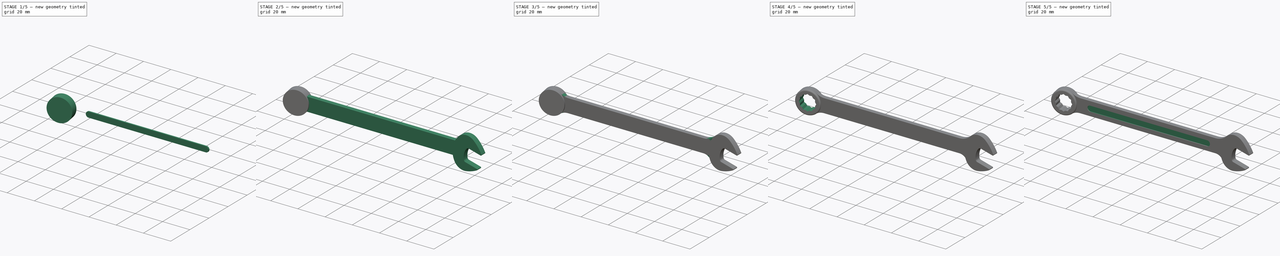
[diagram: build sequence overview — one tinted view per stage of 5, left to right]
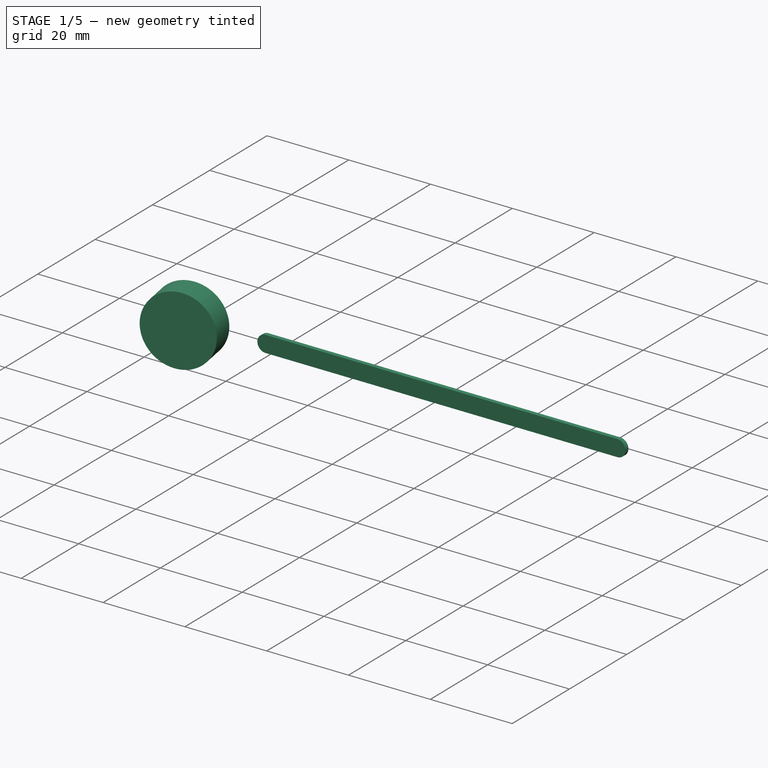
[diagram: stage 1 of 5 — iso view after this stage's code; geometry added in this stage tinted green]
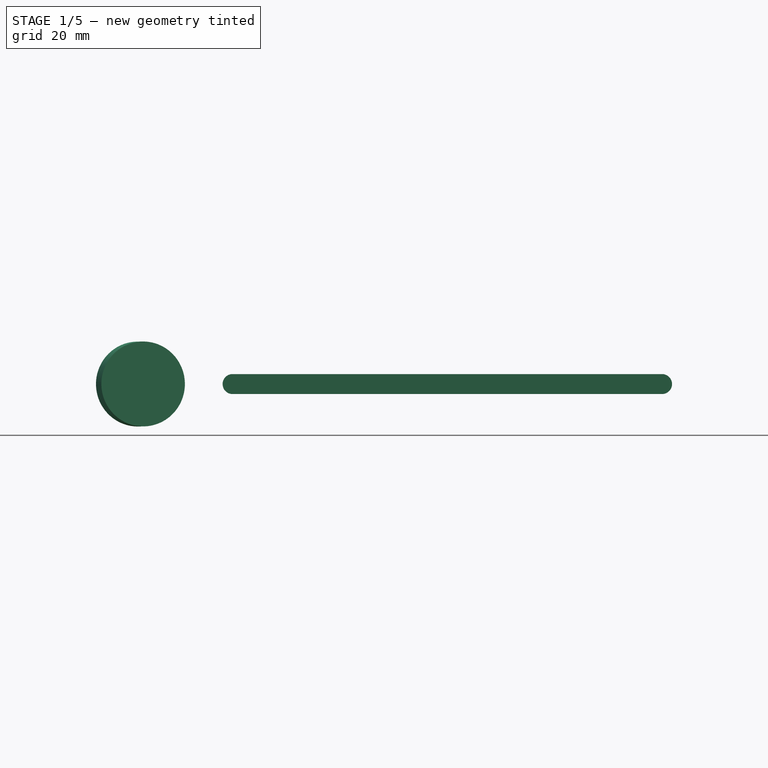
[diagram: stage 1 of 5 — front view after this stage's code; geometry added in this stage tinted green]
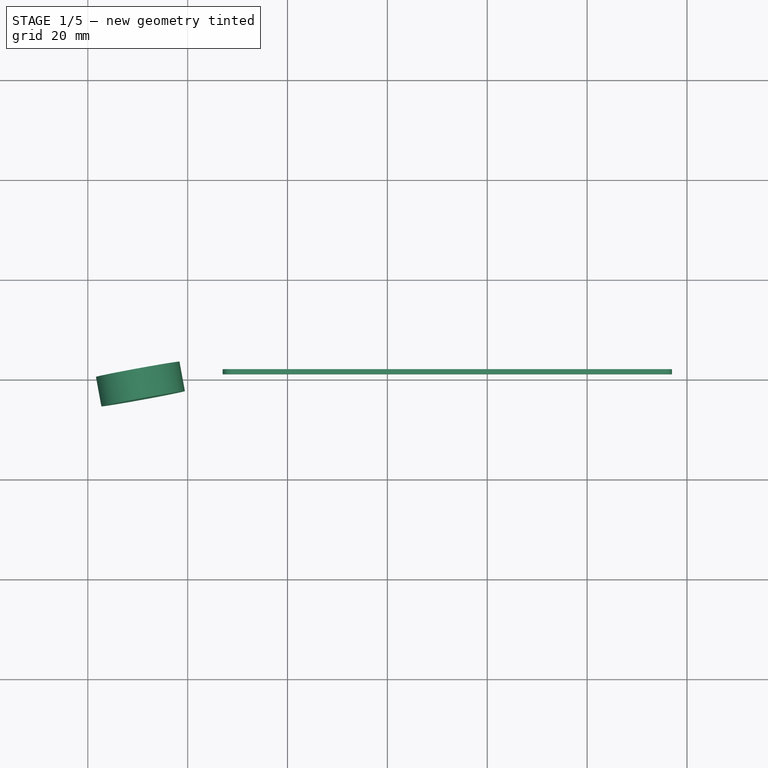
[diagram: stage 1 of 5 — top view after this stage's code; geometry added in this stage tinted green]
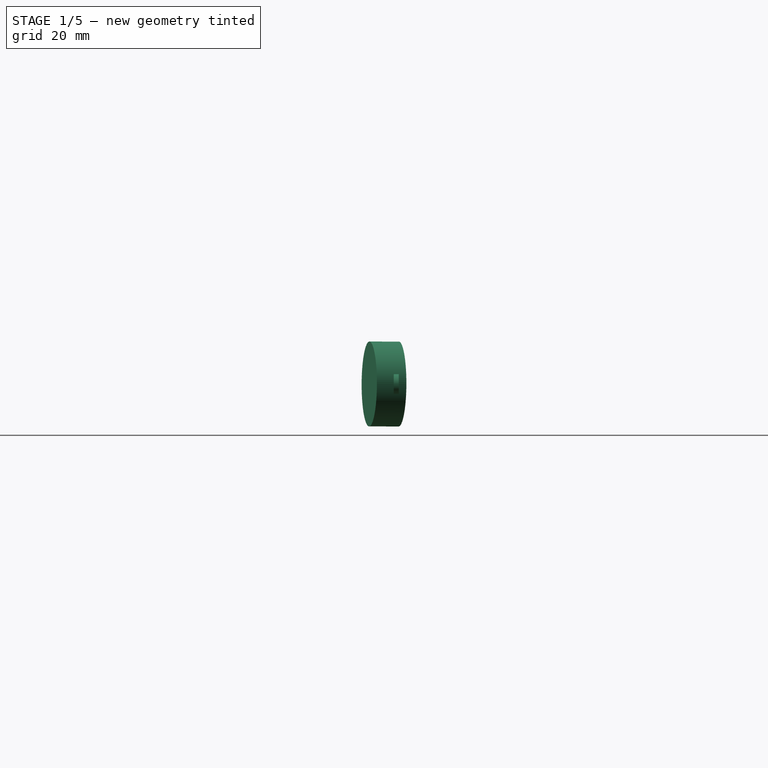
[diagram: stage 1 of 5 — right view after this stage's code; geometry added in this stage tinted green]
FCSTD DOCUMENT  (FreeCAD 0.16R)
Label: CHAVE COMBINADA
License: All rights reserved
LicenseURL: http://en.wikipedia.org/wiki/All_rights_reserved
objects: Part::Fillet×5, Sketcher::SketchObject×4, PartDesign::Pad×2, Part::MultiFuse×2, PartDesign::Pocket×2, Part::Cut×2, Part::Cylinder×1, Part::Box×1, Part::FeaturePython×1
note: 24 computed .brp shape members not serialized (recipe doc carries the construction recipe); baked Part::Feature solids carry a one-line shape summary decoded from their .brp

FEATURE [Part::Cylinder] Cylinder  label="Cilindro"
  Angle = 360
  Height = 6
  Placement = pos=(-130,2,2) rot=(0.991837,0.090167,0.090167;1.57546rad)
  Radius = 8.5
FEATURE [Part::Box] Box  label="Cubo"
  Height = 4
  Length = 90
  Width = 1
FEATURE [Part::Fillet] Fillet004
  Base = -> Box
  Edges = 4 edges r=1.99: [Edge2,Edge4,Edge6,Edge8]
  Placement = pos=(-113,1,0) rot=(0,0,1;0rad)
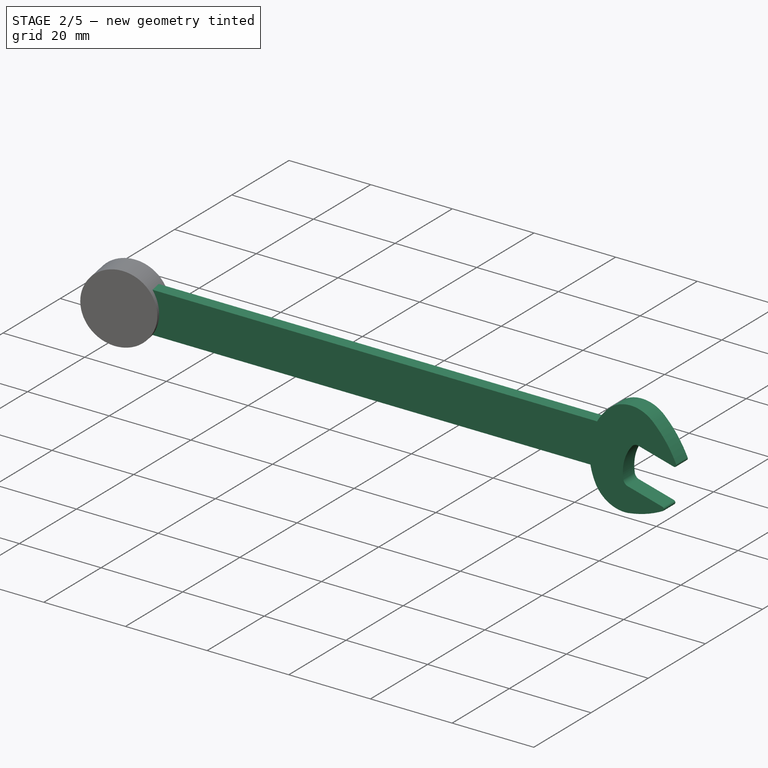
[diagram: stage 2 of 5 — iso view after this stage's code; geometry added in this stage tinted green]
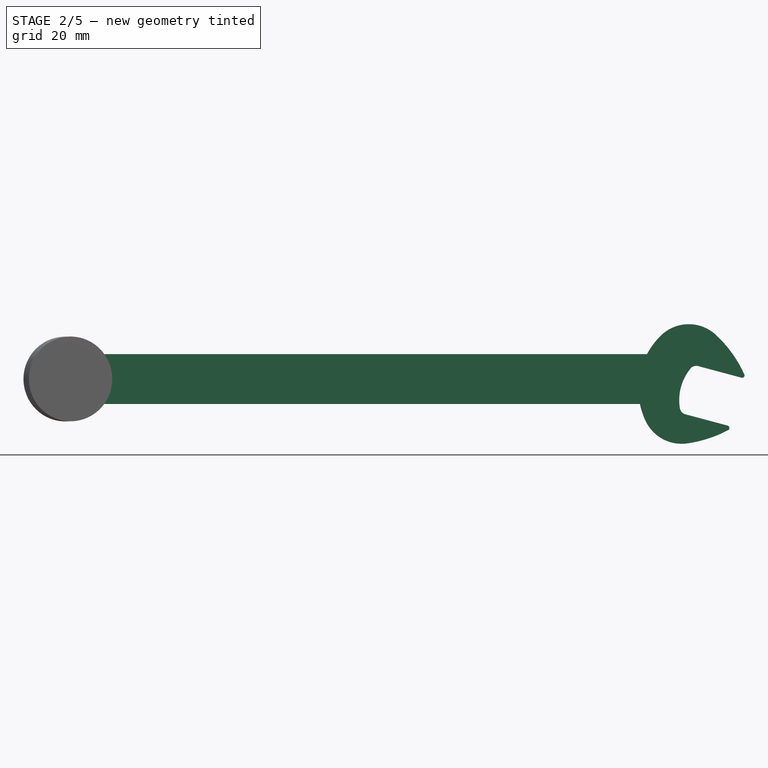
[diagram: stage 2 of 5 — front view after this stage's code; geometry added in this stage tinted green]
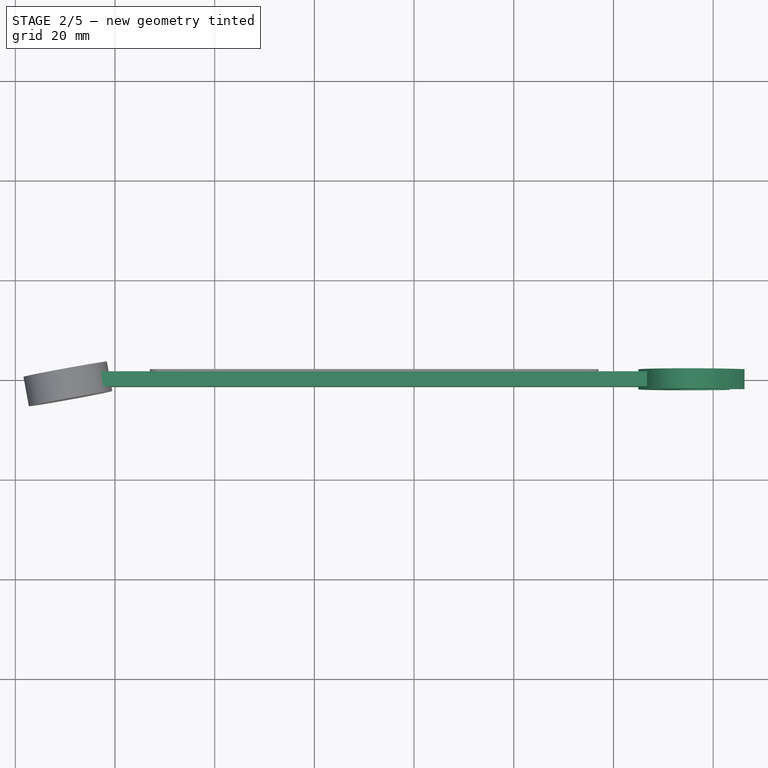
[diagram: stage 2 of 5 — top view after this stage's code; geometry added in this stage tinted green]
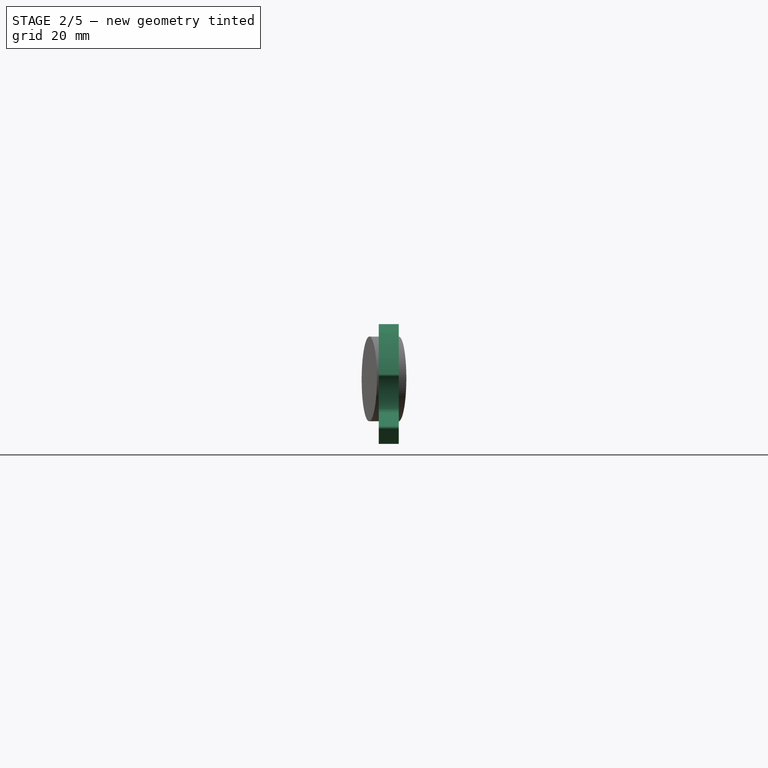
[diagram: stage 2 of 5 — right view after this stage's code; geometry added in this stage tinted green]
FEATURE [Sketcher::SketchObject] Sketch
  Placement = pos=(0,0,0) rot=(-1,0,0;4.71239rad)
  sketch-geometry (11):
    g0: ArcOfCircle CenterX=0 CenterY=0 CenterZ=0 NormalX=0 NormalY=0 NormalZ=1 Radius=15 StartAngle=2.34599 EndAngle=3.5845
    g1: ArcOfCircle CenterX=-4.89898 CenterY=5 CenterZ=0 NormalX=0 NormalY=0 NormalZ=1 Radius=8 StartAngle=0.820323 EndAngle=2.34599
    g2: ArcOfCircle CenterX=-6.32456 CenterY=-3 CenterZ=0 NormalX=0 NormalY=0 NormalZ=1 Radius=8 StartAngle=3.5845 EndAngle=4.8525
    g3: ArcOfCircle CenterX=-16.4927 CenterY=-7.43323 CenterZ=0 NormalX=0 NormalY=0 NormalZ=1 Radius=25 StartAngle=0.38691 EndAngle=0.820323
    g4: ArcOfCircle CenterX=-8.69863 CenterY=13.8334 CenterZ=0 NormalX=0 NormalY=0 NormalZ=1 Radius=25 StartAngle=4.8525 EndAngle=5.24849
    g5: LineSegment StartX=6.65926 StartY=2 StartZ=0 EndX=-3 EndY=4.58819 EndZ=0
    g6: LineSegment StartX=4.07107 StartY=-7.65926 StartZ=0 EndX=-5.58819 EndY=-5.07107 EndZ=0
    g7: LineSegment [constr] StartX=-5.58819 StartY=-5.07107 StartZ=0 EndX=-3 EndY=4.58819 EndZ=0
    g8: ArcOfCircle CenterX=3.18793 CenterY=-2.24624 CenterZ=0 NormalX=0 NormalY=0 NormalZ=1 Radius=10 StartAngle=2.4554 EndAngle=3.30418
    g9: ArcOfCircle CenterX=-3.38823 CenterY=3.1393 CenterZ=0 NormalX=0 NormalY=0 NormalZ=1 Radius=1.5 StartAngle=1.309 EndAngle=2.4554
    g10: ArcOfCircle CenterX=-5.19996 CenterY=-3.62218 CenterZ=0 NormalX=0 NormalY=0 NormalZ=1 Radius=1.5 StartAngle=3.30419 EndAngle=4.45059
  constraints (39):
    c: Coincident(g0,g-1)
    c: Radius(g0) = 15
    c: Coincident(g1,g0)
    c: Tangent(g0,g1)
    c: Radius(g1) = 8
    c: Coincident(g2,g0)
    c: Radius(g2) = 8
    c: Tangent(g0,g2)
    c: Coincident(g3,g1)
    c: Tangent(g1,g3)
    c: Radius(g3) = 25
    c: Radius(g4) = 25
    c: Coincident(g2,g4)
    c: Tangent(g2,g4)
    c: Coincident(g5,g3)
    c: Distance(g5) = 10
    c: Angle(g5,g-1) = 0.261799
    c: Coincident(g7,g5)
    c: Coincident(g7,g6)
    c: Perpendicular(g7,g6)
    c: Coincident(g4,g6)
    c: Perpendicular(g5,g7)
    c: Distance(g7) = 10
    c: DistanceX(g5,g-1) = 3
    c: DistanceY(g-1,g3) = 2
    c: Equal(g6,g5)
    c: DistanceY(g-1,g1) = 5
    c: DistanceY(g2,g-1) = 3
    c: PointOnObject(g9,g7)
    c: Coincident(g9,g5)
    c: Coincident(g8,g9)
    c: Tangent(g8,g9)
    c: PointOnObject(g10,g7)
    c: Coincident(g8,g10)
    c: Coincident(g10,g6)
    c: Tangent(g10,g8)
    c: Radius(g8) = 10
    c: Radius(g9) = 1.5
    c: Radius(g10) = 1.5
FEATURE [PartDesign::Pad] Pad
  Length = 4
  Length2 = 100
  Midplane = true
  Placement = pos=(0,0,0) rot=(-1,0,0;4.71239rad)
  Sketch = -> Sketch
  Type = 0
FEATURE [Part::Fillet] Fillet
  Base = -> Pad
  Edges = 2 edges r=0.5: [Edge5,Edge20]
FEATURE [Sketcher::SketchObject] Sketch001
  Placement = pos=(-9,0,2) rot=(0.57735,0.57735,0.57735;2.0944rad)
  sketch-geometry (4):
    g0: LineSegment StartX=-1.5 StartY=5 StartZ=0 EndX=1.5 EndY=5 EndZ=0
    g1: LineSegment StartX=1.5 StartY=5 StartZ=0 EndX=1.5 EndY=-5 EndZ=0
    g2: LineSegment StartX=1.5 StartY=-5 StartZ=0 EndX=-1.5 EndY=-5 EndZ=0
    g3: LineSegment StartX=-1.5 StartY=-5 StartZ=0 EndX=-1.5 EndY=5 EndZ=0
  constraints (12):
    c: Coincident(g0,g1)
    c: Coincident(g1,g2)
    c: Coincident(g2,g3)
    c: Coincident(g3,g0)
    c: Horizontal(g0)
    c: Horizontal(g2)
    c: Vertical(g1)
    c: Vertical(g3)
    c: Symmetric(g0,g0,g-2)
    c: DistanceX(g2,g2) = 3
    c: DistanceY(g1,g1) = 10
    c: Symmetric(g2,g0,g-1)
FEATURE [PartDesign::Pad] Pad001
  Length = 120
  Length2 = 100
  Placement = pos=(-9,0,2) rot=(0.57735,0.57735,0.57735;2.0944rad)
  Reversed = true
  Sketch = -> Sketch001
  Type = 0
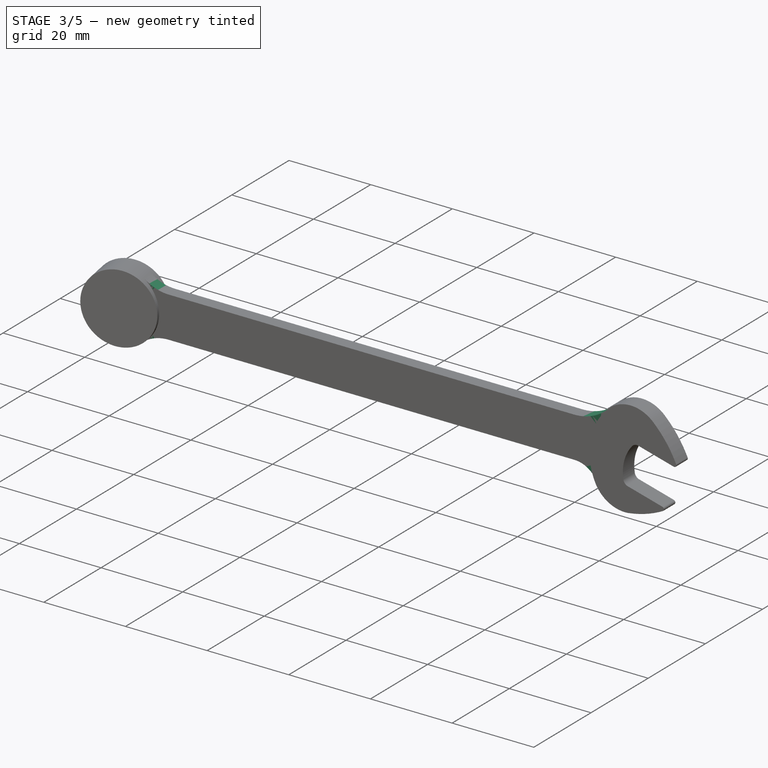
[diagram: stage 3 of 5 — iso view after this stage's code; geometry added in this stage tinted green]
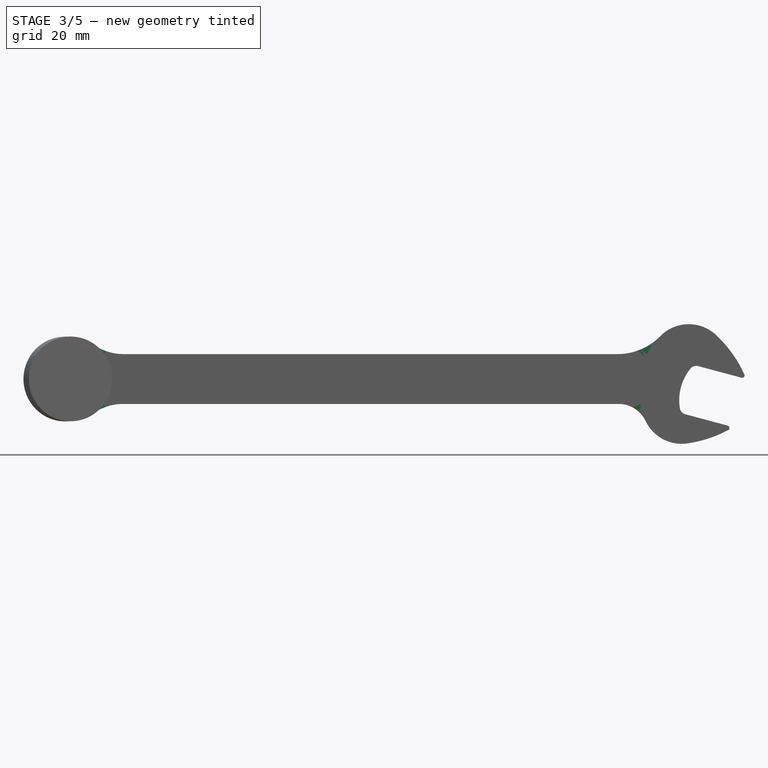
[diagram: stage 3 of 5 — front view after this stage's code; geometry added in this stage tinted green]
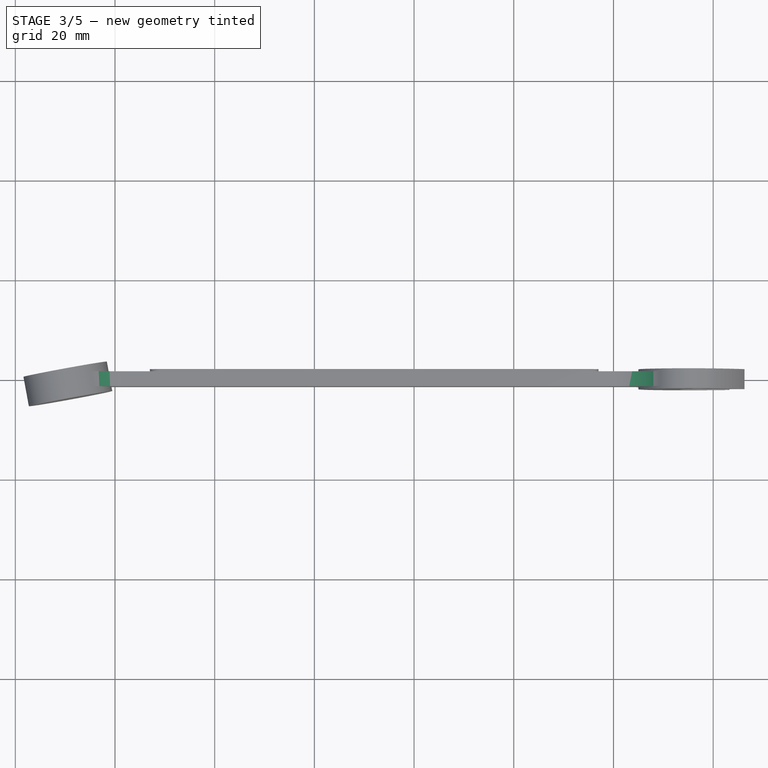
[diagram: stage 3 of 5 — top view after this stage's code; geometry added in this stage tinted green]
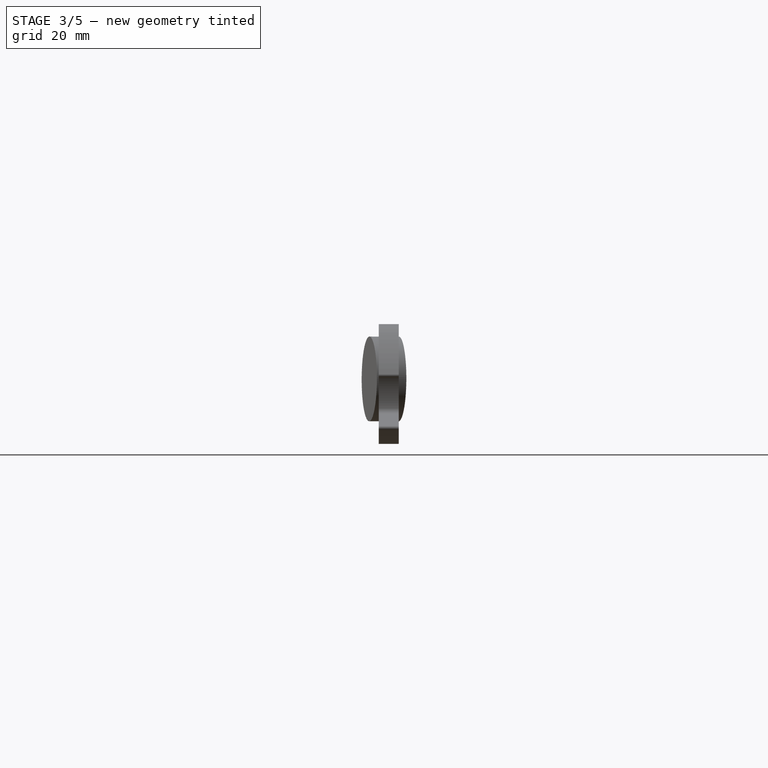
[diagram: stage 3 of 5 — right view after this stage's code; geometry added in this stage tinted green]
FEATURE [Part::MultiFuse] Fusion
  Placement = pos=(0,0,0) rot=(0.073575,0.848039,0.524802;0.010071rad)
  Shapes = -> [Fillet,Pad001]
FEATURE [Part::Fillet] Fillet001
  Base = -> Fusion
  Edges = 2 edges: [Edge5 r=13,Edge10 r=6]
FEATURE [Part::MultiFuse] Fusion001
  Shapes = -> [Fillet001,Cylinder]
FEATURE [Part::Fillet] Fillet002
  Base = -> Fusion001
  Edges = 2 edges r=10: [Edge4,Edge8]
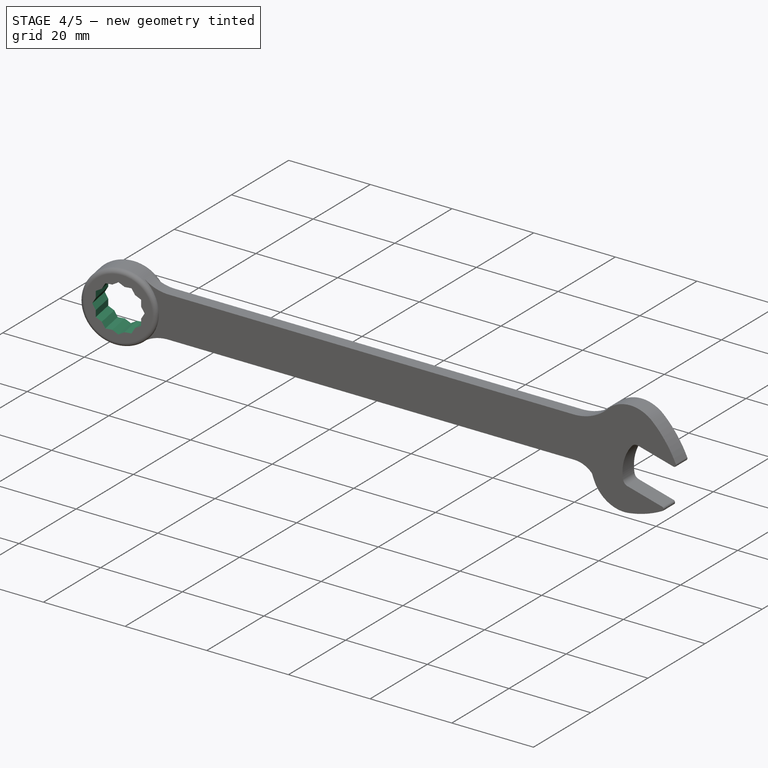
[diagram: stage 4 of 5 — iso view after this stage's code; geometry added in this stage tinted green]
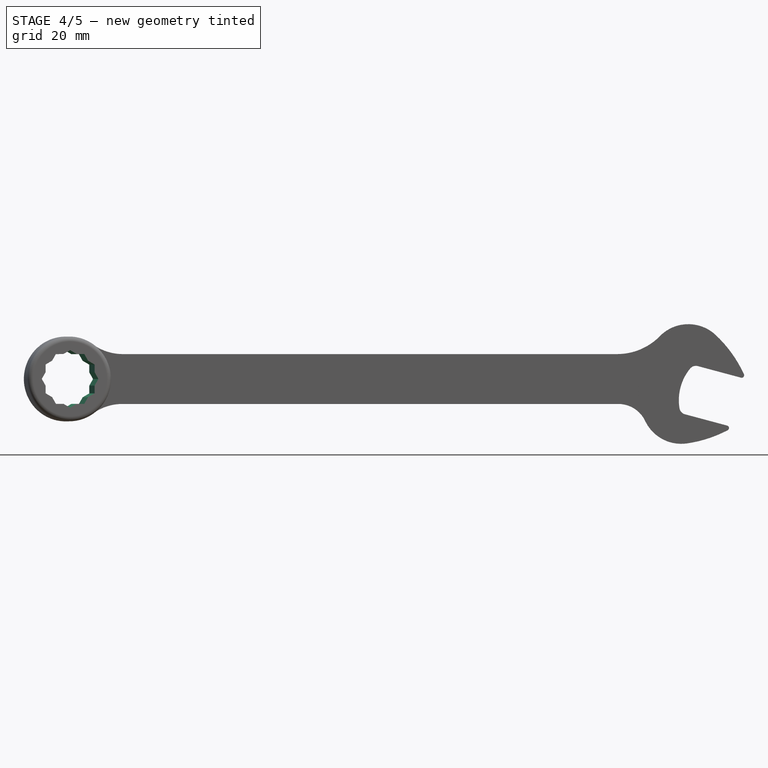
[diagram: stage 4 of 5 — front view after this stage's code; geometry added in this stage tinted green]
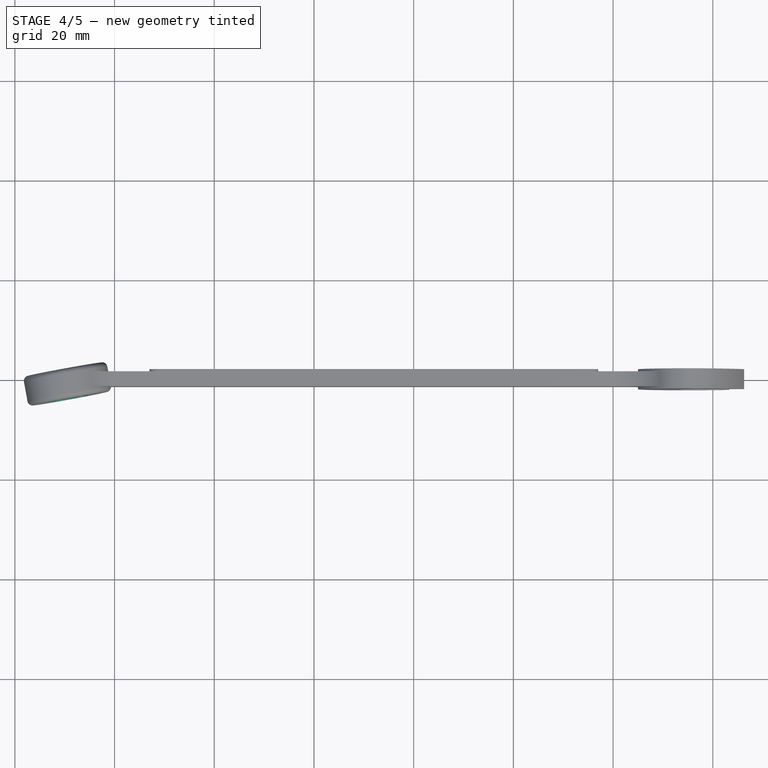
[diagram: stage 4 of 5 — top view after this stage's code; geometry added in this stage tinted green]
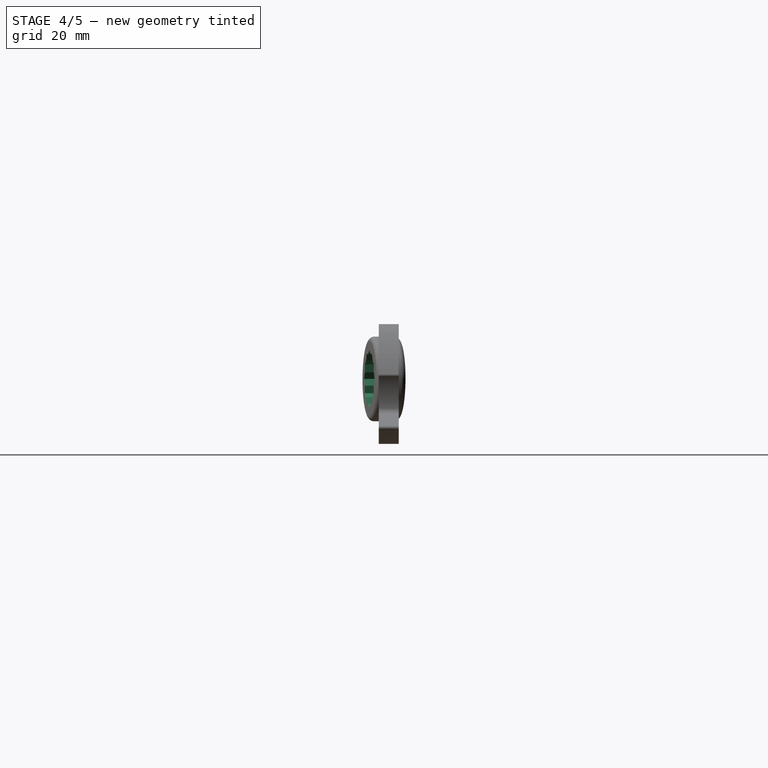
[diagram: stage 4 of 5 — right view after this stage's code; geometry added in this stage tinted green]
FEATURE [Sketcher::SketchObject] Sketch002
  ExternalGeometry = -> [Fillet002]
  Placement = pos=(-3.48547,19.0458,-0.0677541) rot=(0.991836,0.090328,0.090008;1.57544rad)
  Support = -> Fillet002 [Face5]
  sketch-geometry (7):
    g0: LineSegment StartX=-133.291 StartY=2.0071 StartZ=0 EndX=-130.404 EndY=-2.9929 EndZ=0
    g1: LineSegment StartX=-130.404 StartY=-2.9929 StartZ=0 EndX=-124.631 EndY=-2.9929 EndZ=0
    g2: LineSegment StartX=-124.631 StartY=-2.9929 StartZ=0 EndX=-121.744 EndY=2.0071 EndZ=0
    g3: LineSegment StartX=-121.744 StartY=2.0071 StartZ=0 EndX=-124.631 EndY=7.0071 EndZ=0
    g4: LineSegment StartX=-124.631 StartY=7.0071 StartZ=0 EndX=-130.404 EndY=7.0071 EndZ=0
    g5: LineSegment StartX=-130.404 StartY=7.0071 StartZ=0 EndX=-133.291 EndY=2.0071 EndZ=0
    g6: Circle [constr] CenterX=-127.518 CenterY=2.0071 CenterZ=0 NormalX=0 NormalY=0 NormalZ=1 Radius=5.7735
  constraints (16):
    c: Coincident(g0,g1)
    c: Coincident(g1,g2)
    c: Coincident(g2,g3)
    c: Coincident(g3,g4)
    c: Coincident(g4,g5)
    c: Coincident(g5,g0)
    c: Equal(g0, g1-g5) x5
    c: PointOnObject(g0,g6)
    c: PointOnObject(g1,g6)
    c: PointOnObject(g2,g6)
    c: PointOnObject(g3,g6)
    c: PointOnObject(g4,g6)
    c: PointOnObject(g5,g6)
    c: Coincident(g6,g-3)
    c: Horizontal(g4)
    c: DistanceY(g0,g4) = 10
FEATURE [PartDesign::Pocket] Pocket
  Length = 5
  Sketch = -> Sketch002
  Type = 1
FEATURE [Sketcher::SketchObject] Sketch003
  ExternalGeometry = -> [Pocket]
  Placement = pos=(-3.48547,19.0458,-0.0677541) rot=(0.991836,0.090328,0.090008;1.57544rad)
  Support = -> Pocket [Face5]
  sketch-geometry (7):
    g0: LineSegment StartX=-122.518 StartY=4.89385 StartZ=0 EndX=-127.518 EndY=7.7806 EndZ=0
    g1: LineSegment StartX=-127.518 StartY=7.7806 StartZ=0 EndX=-132.518 EndY=4.89385 EndZ=0
    g2: LineSegment StartX=-132.518 StartY=4.89385 StartZ=0 EndX=-132.518 EndY=-0.879649 EndZ=0
    g3: LineSegment StartX=-132.518 StartY=-0.879649 StartZ=0 EndX=-127.518 EndY=-3.7664 EndZ=0
    g4: LineSegment StartX=-127.518 StartY=-3.7664 StartZ=0 EndX=-122.518 EndY=-0.879649 EndZ=0
    g5: LineSegment StartX=-122.518 StartY=-0.879649 StartZ=0 EndX=-122.518 EndY=4.89385 EndZ=0
    g6: Circle [constr] CenterX=-127.518 CenterY=2.0071 CenterZ=0 NormalX=0 NormalY=0 NormalZ=1 Radius=5.7735
  constraints (16):
    c: Coincident(g0,g1)
    c: Coincident(g1,g2)
    c: Coincident(g2,g3)
    c: Coincident(g3,g4)
    c: Coincident(g4,g5)
    c: Coincident(g5,g0)
    c: Equal(g0, g1-g5) x5
    c: PointOnObject(g0,g6)
    c: PointOnObject(g1,g6)
    c: PointOnObject(g2,g6)
    c: PointOnObject(g3,g6)
    c: PointOnObject(g4,g6)
    c: PointOnObject(g5,g6)
    c: Coincident(g6,g-3)
    c: Vertical(g5)
    c: Distance(g4,g0) = 10
FEATURE [PartDesign::Pocket] Pocket001
  Length = 5
  Sketch = -> Sketch003
  Type = 1
FEATURE [Part::Fillet] Fillet003
  Base = -> Pocket001
  Edges = 2 edges r=1: [Edge6,Edge10]
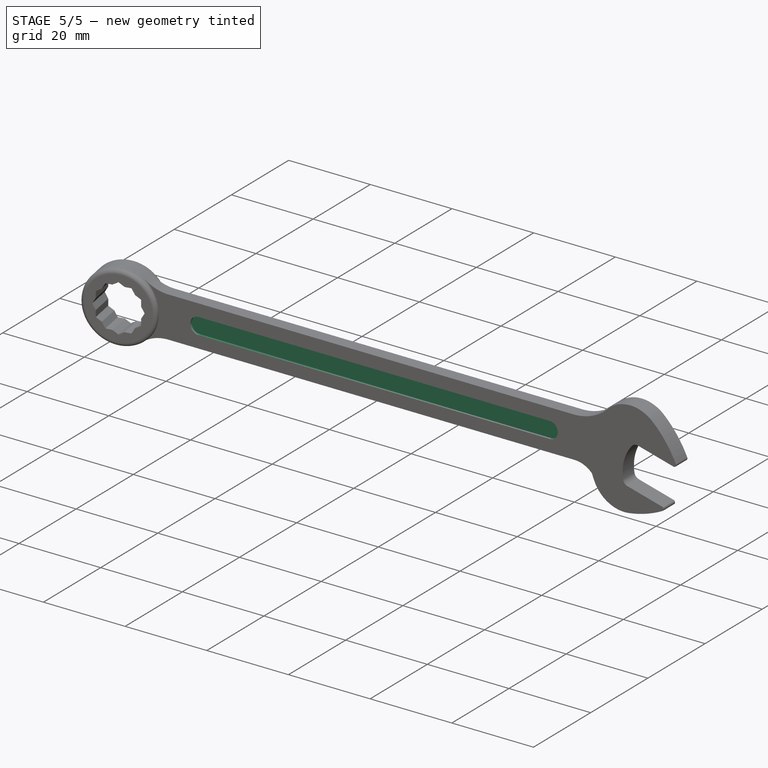
[diagram: stage 5 of 5 — iso view after this stage's code; geometry added in this stage tinted green]
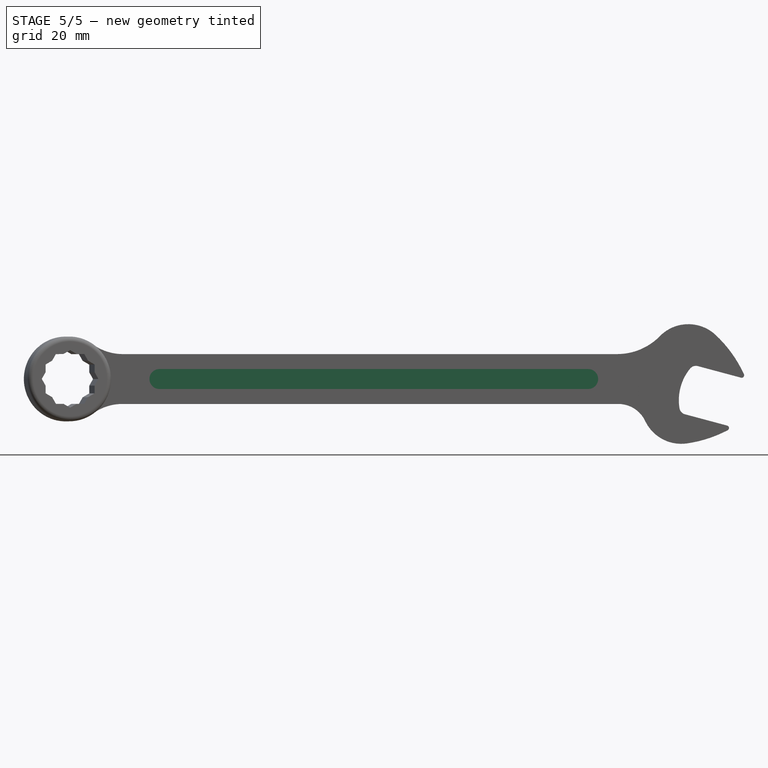
[diagram: stage 5 of 5 — front view after this stage's code; geometry added in this stage tinted green]
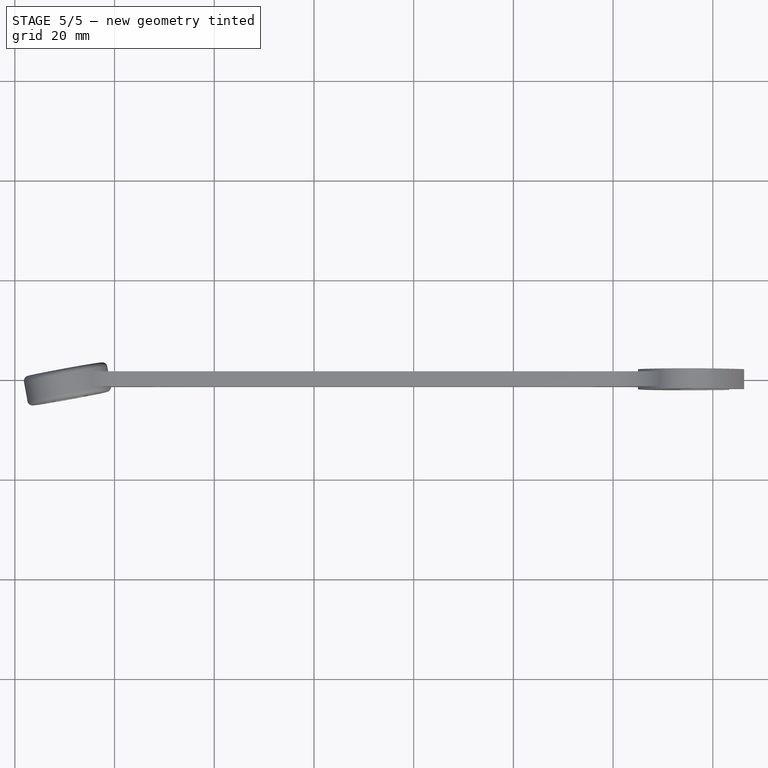
[diagram: stage 5 of 5 — top view after this stage's code; geometry added in this stage tinted green]
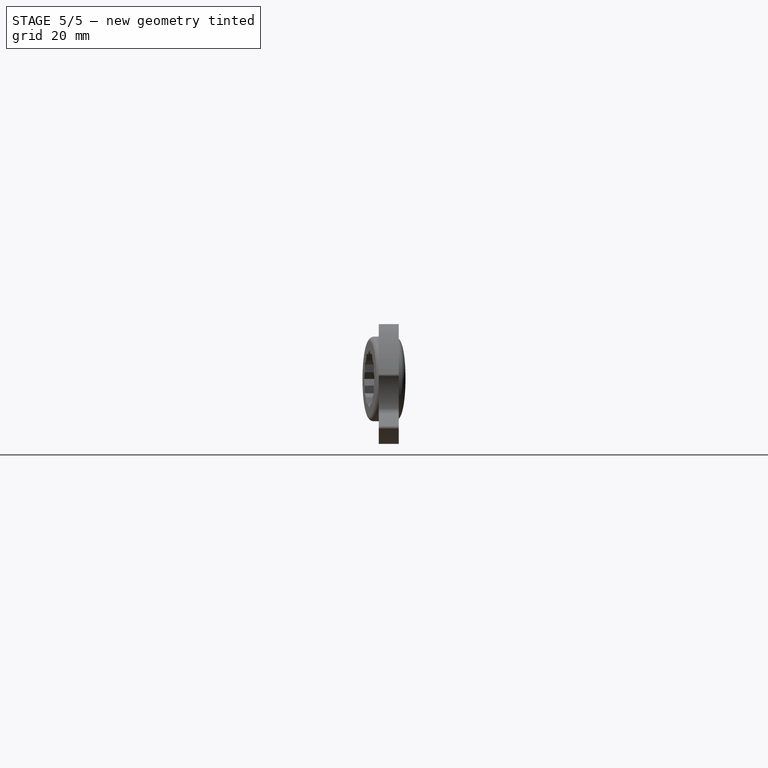
[diagram: stage 5 of 5 — right view after this stage's code; geometry added in this stage tinted green]
FEATURE [Part::FeaturePython] Clone  label="Clone of Fillet004"  # Draft clone (typed FeaturePython)
  Objects = -> [Fillet004]
  Placement = pos=(-113,-2,0) rot=(0,0,1;0rad)
  Scale = (1,1,1)
FEATURE [Part::Cut] Cut
  Base = -> Fillet003
  Tool = -> Fillet004
FEATURE [Part::Cut] Cut001
  Base = -> Cut
  Tool = -> Clone
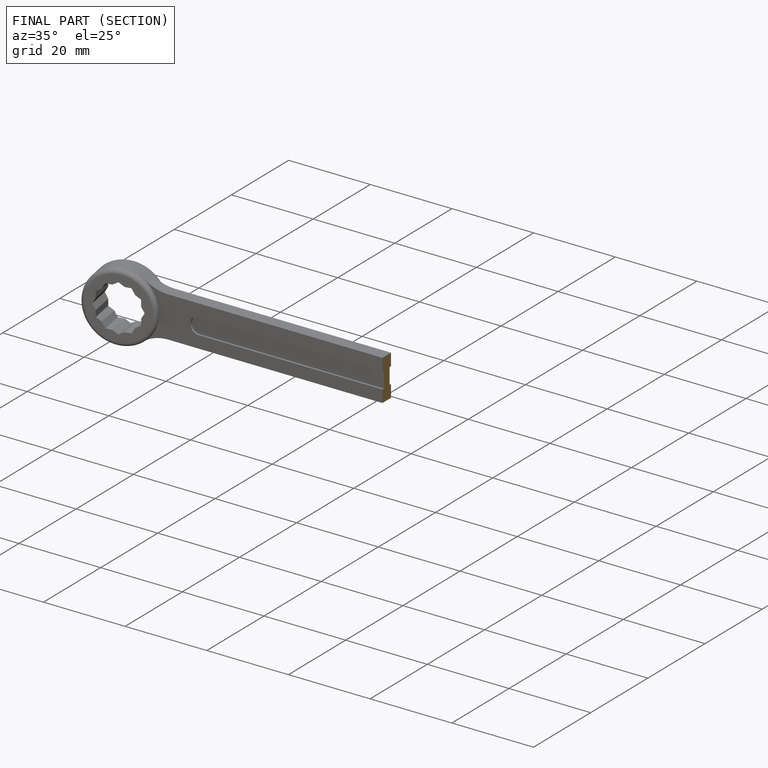
[diagram: finished part — half-section view (interior)]
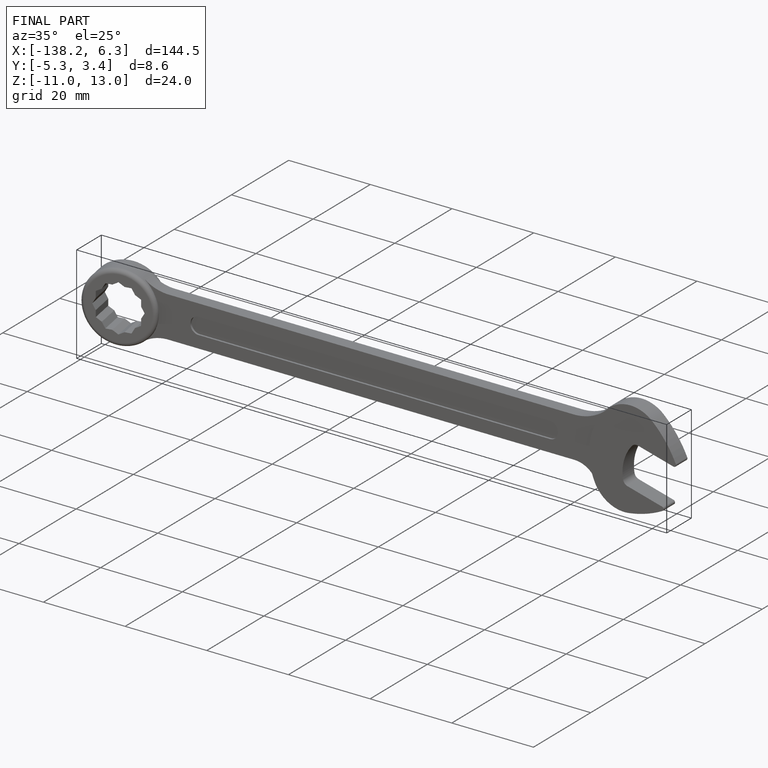
[diagram: finished part — iso view with bounding-box wireframe]
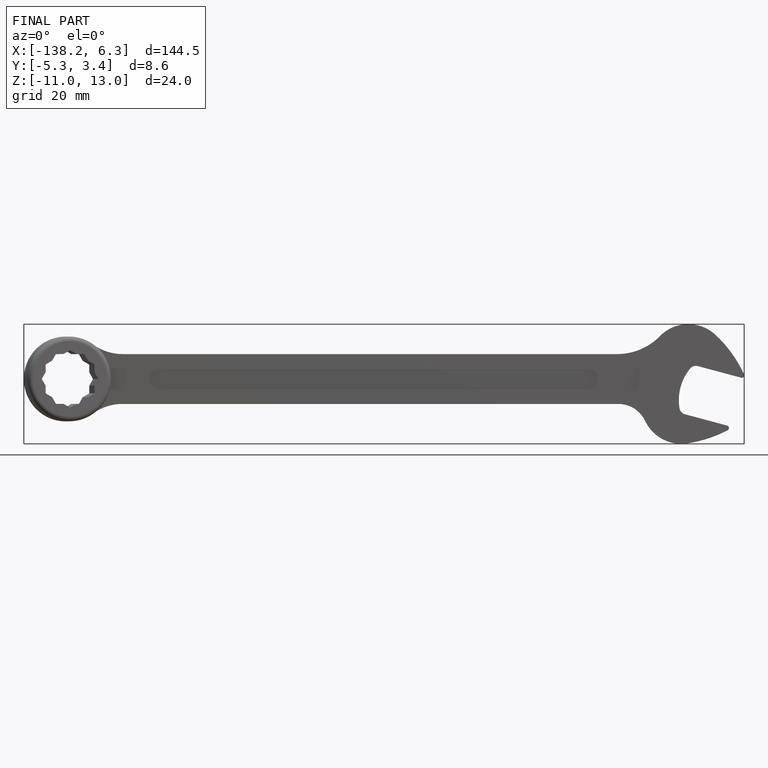
[diagram: finished part — front view with bounding-box wireframe]
